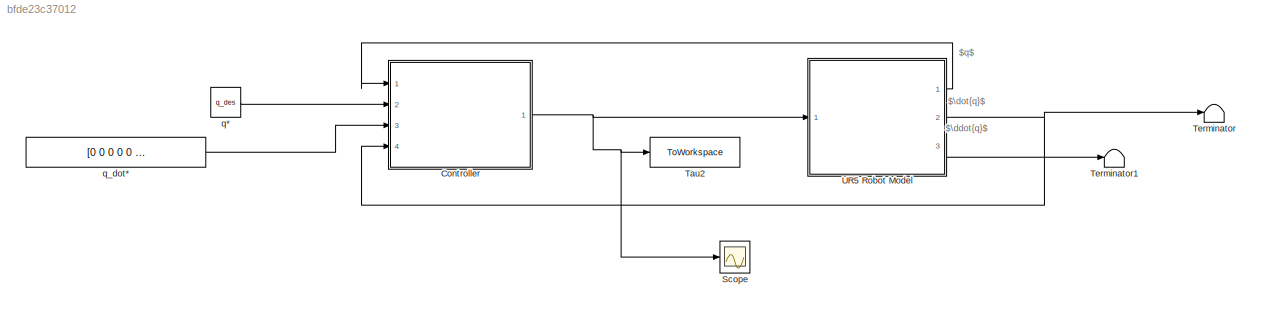
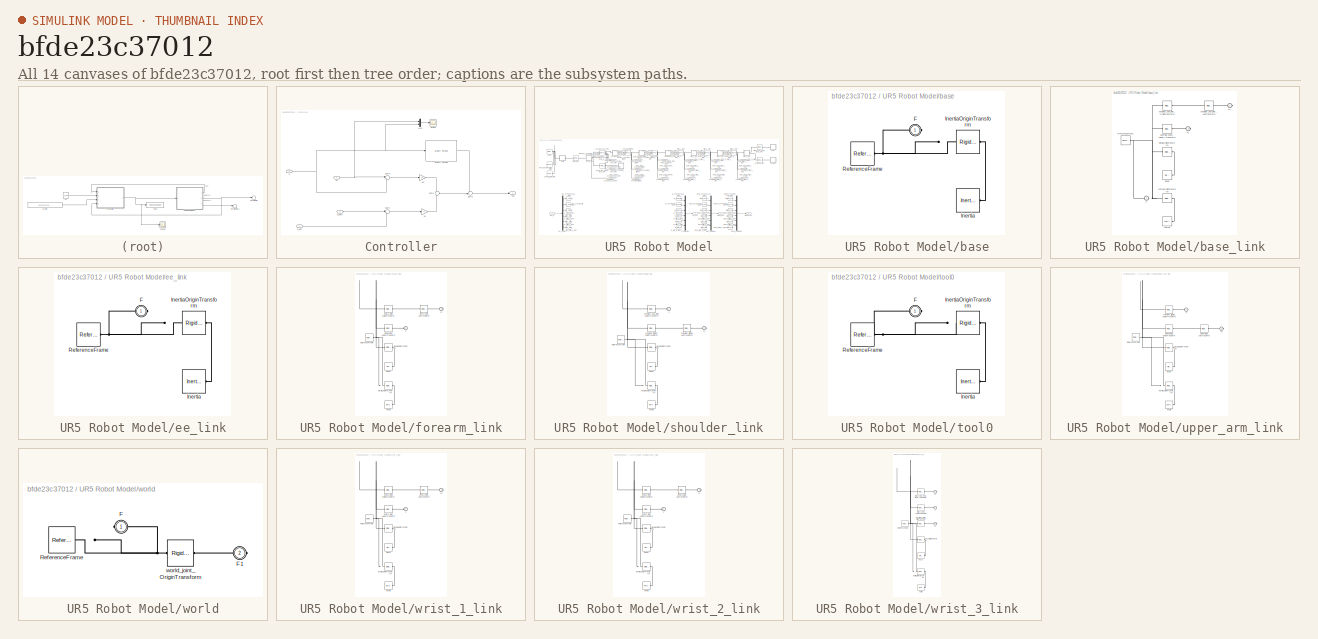
[diagram: thumbnail index - all 14 canvases of the model, root first then tree order]
MODEL slx_bfde23c37012
KIND model
CONFIG AbsTol = auto
CONFIG EnableMultiTasking = off
CONFIG FixedStep = auto
CONFIG MaxStep = auto
CONFIG MinStep = auto
CONFIG RelTol = 1e-3
CONFIG SampleTimeConstraint = Unconstrained
CONFIG SolverName = VariableStepAuto
CONFIG StartTime = 0.0
CONFIG StopTime = 10.0
WORKSPACE source: mxarray member
WORKSPACE Ke: Simulink.Parameter (value not decoded)
WORKSPACE Kv: Simulink.Parameter (value not decoded)
WORKSPACE UR5: robotics.RigidBodyTree (value not decoded)
WORKSPACE dq0 = [0 0 0 0 0 0]
WORKSPACE q0 = [0 0 0 0 0 0]
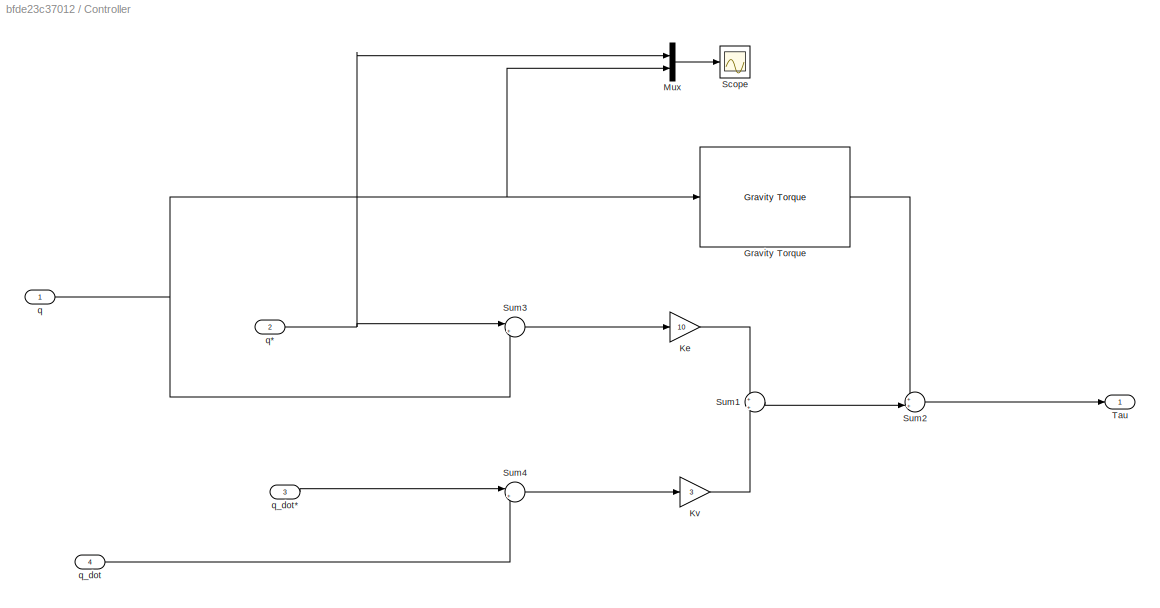
BLOCK [SubSystem] Controller
  Ports = [4, 1]
  RequestExecContextInheritance = off
BLOCK [Reference] Controller/Gravity Torque  REF=robotmaniplib/Gravity Torque
  Ports = [1, 1]
  SourceBlock = robotmaniplib/Gravity Torque
  SourceProductBaseCode = RO
  SourceType = Gravity Torque
BLOCK [Gain] Controller/Ke
  Gain = 10
BLOCK [Gain] Controller/Kv
  Gain = 3
BLOCK [Mux] Controller/Mux
  DisplayOption = bar
  Inputs = 2
  Ports = [2, 1]
BLOCK [Scope] Controller/Scope
  Floating = off
  NumInputPorts = 1
  Ports = [1]
  ScopeSpecificationString = Simulink.scopes.TimeScopeBlockCfg('CurrentConfiguration', extmgr.ConfigurationSet(extmgr.Configuration('Core','General UI',true,'FigureColor',[1 1 1]),extmgr.Configuration('Core','Source UI',true),extmgr.Configuration('Sources','WiredSimulink',true,'DataLoggingVariableName','ScopeData1'),extmgr.Configuration('Visuals','Time Domain',true,'SerializedDisplays',{struct('MinYLimReal','-2.8154','MaxYLim...<+3096ch>
BLOCK [Sum] Controller/Sum1
  Inputs = +|+
  Ports = [2, 1]
BLOCK [Sum] Controller/Sum2
  Inputs = ++|
  Ports = [2, 1]
BLOCK [Sum] Controller/Sum3
  Inputs = |+-
  Ports = [2, 1]
BLOCK [Sum] Controller/Sum4
  Inputs = |+-
  Ports = [2, 1]
BLOCK [Outport] Controller/Tau
BLOCK [Inport] Controller/q
BLOCK [Inport] Controller/q*
  Port = 2
BLOCK [Inport] Controller/q_dot
  Port = 4
BLOCK [Inport] Controller/q_dot*
  Port = 3
BLOCK [Scope] Scope
  Floating = off
  NumInputPorts = 1
  Ports = [1]
  ScopeSpecificationString = Simulink.scopes.TimeScopeBlockCfg('CurrentConfiguration', extmgr.ConfigurationSet(extmgr.Configuration('Core','General UI',true,'FigureColor',[1 1 1]),extmgr.Configuration('Core','Source UI',true),extmgr.Configuration('Sources','WiredSimulink',true,'DataLoggingVariableName','ScopeData1'),extmgr.Configuration('Visuals','Time Domain',true,'SerializedDisplays',{struct('MinYLimReal','-18.86069','MaxYL...<+2251ch>
BLOCK [ToWorkspace] Tau2
  FixptAsFi = on
  MaxDataPoints = inf
  Ports = [1]
  SampleTime = -1
  SaveFormat = Timeseries
  VariableName = Tau2
BLOCK [Terminator] Terminator
BLOCK [Terminator] Terminator1
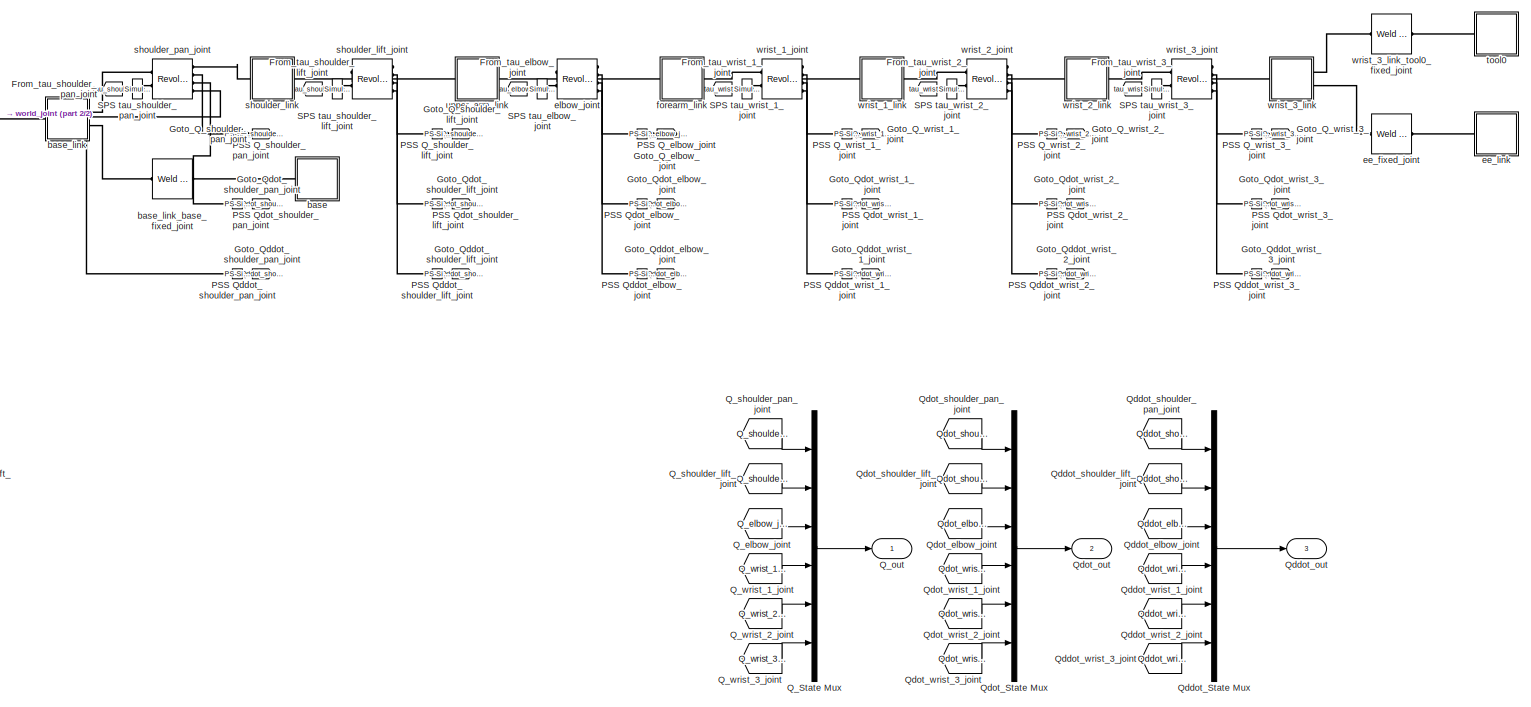
[diagram: UR5 Robot Model - part 1/2, most of the canvas]
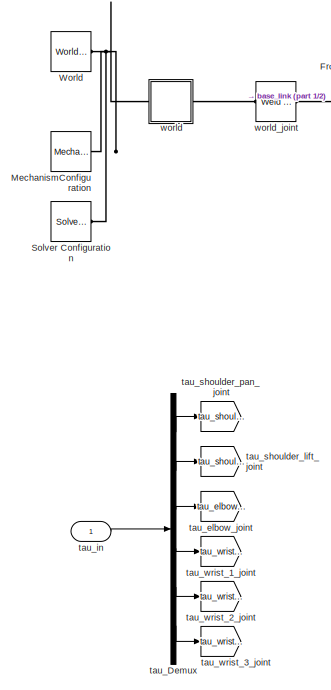
[diagram: UR5 Robot Model - part 2/2, left side, full height]
BLOCK [SubSystem] UR5 Robot Model
  Ports = [1, 3]
  RequestExecContextInheritance = off
BLOCK [From] UR5 Robot Model/From_tau_elbow_joint
  GotoTag = tau_elbow_joint
BLOCK [From] UR5 Robot Model/From_tau_shoulder_lift_joint
  GotoTag = tau_shoulder_lift_joint
BLOCK [From] UR5 Robot Model/From_tau_shoulder_pan_joint
  GotoTag = tau_shoulder_pan_joint
BLOCK [From] UR5 Robot Model/From_tau_wrist_1_joint
  GotoTag = tau_wrist_1_joint
BLOCK [From] UR5 Robot Model/From_tau_wrist_2_joint
  GotoTag = tau_wrist_2_joint
BLOCK [From] UR5 Robot Model/From_tau_wrist_3_joint
  GotoTag = tau_wrist_3_joint
BLOCK [Goto] UR5 Robot Model/Goto_Q_elbow_joint
  GotoTag = Q_elbow_joint
BLOCK [Goto] UR5 Robot Model/Goto_Q_shoulder_lift_joint
  GotoTag = Q_shoulder_lift_joint
BLOCK [Goto] UR5 Robot Model/Goto_Q_shoulder_pan_joint
  GotoTag = Q_shoulder_pan_joint
BLOCK [Goto] UR5 Robot Model/Goto_Q_wrist_1_joint
  GotoTag = Q_wrist_1_joint
BLOCK [Goto] UR5 Robot Model/Goto_Q_wrist_2_joint
  GotoTag = Q_wrist_2_joint
BLOCK [Goto] UR5 Robot Model/Goto_Q_wrist_3_joint
  GotoTag = Q_wrist_3_joint
BLOCK [Goto] UR5 Robot Model/Goto_Qddot_elbow_joint
  GotoTag = Qddot_elbow_joint
BLOCK [Goto] UR5 Robot Model/Goto_Qddot_shoulder_lift_joint
  GotoTag = Qddot_shoulder_lift_joint
BLOCK [Goto] UR5 Robot Model/Goto_Qddot_shoulder_pan_joint
  GotoTag = Qddot_shoulder_pan_joint
BLOCK [Goto] UR5 Robot Model/Goto_Qddot_wrist_1_joint
  GotoTag = Qddot_wrist_1_joint
BLOCK [Goto] UR5 Robot Model/Goto_Qddot_wrist_2_joint
  GotoTag = Qddot_wrist_2_joint
BLOCK [Goto] UR5 Robot Model/Goto_Qddot_wrist_3_joint
  GotoTag = Qddot_wrist_3_joint
BLOCK [Goto] UR5 Robot Model/Goto_Qdot_elbow_joint
  GotoTag = Qdot_elbow_joint
BLOCK [Goto] UR5 Robot Model/Goto_Qdot_shoulder_lift_joint
  GotoTag = Qdot_shoulder_lift_joint
BLOCK [Goto] UR5 Robot Model/Goto_Qdot_shoulder_pan_joint
  GotoTag = Qdot_shoulder_pan_joint
BLOCK [Goto] UR5 Robot Model/Goto_Qdot_wrist_1_joint
  GotoTag = Qdot_wrist_1_joint
BLOCK [Goto] UR5 Robot Model/Goto_Qdot_wrist_2_joint
  GotoTag = Qdot_wrist_2_joint
BLOCK [Goto] UR5 Robot Model/Goto_Qdot_wrist_3_joint
  GotoTag = Qdot_wrist_3_joint
BLOCK [Reference] UR5 Robot Model/MechanismConfiguration  REF=sm_lib/Utilities/Mechanism
Configuration
  Ports = [0, 0, 0, 0, 0, 0, 1]
  SourceBlock = sm_lib/Utilities/Mechanism\nConfiguration
  SourceProductBaseCode = MS
  SourceType = Mechanism\nConfiguration
BLOCK [Reference] UR5 Robot Model/PSS Q_elbow_joint  REF=nesl_utility/PS-Simulink
Converter
  Ports = [0, 1, 0, 0, 0, 1]
  SourceBlock = nesl_utility/PS-Simulink\nConverter
  SourceProductBaseCode = SS,PW,VE
  SourceType = PS-Simulink\nConverter
BLOCK [Reference] UR5 Robot Model/PSS Q_shoulder_lift_joint  REF=nesl_utility/PS-Simulink
Converter
  Ports = [0, 1, 0, 0, 0, 1]
  SourceBlock = nesl_utility/PS-Simulink\nConverter
  SourceProductBaseCode = SS,PW,VE
  SourceType = PS-Simulink\nConverter
BLOCK [Reference] UR5 Robot Model/PSS Q_shoulder_pan_joint  REF=nesl_utility/PS-Simulink
Converter
  Ports = [0, 1, 0, 0, 0, 1]
  SourceBlock = nesl_utility/PS-Simulink\nConverter
  SourceProductBaseCode = SS,PW,VE
  SourceType = PS-Simulink\nConverter
BLOCK [Reference] UR5 Robot Model/PSS Q_wrist_1_joint  REF=nesl_utility/PS-Simulink
Converter
  Ports = [0, 1, 0, 0, 0, 1]
  SourceBlock = nesl_utility/PS-Simulink\nConverter
  SourceProductBaseCode = SS,PW,VE
  SourceType = PS-Simulink\nConverter
BLOCK [Reference] UR5 Robot Model/PSS Q_wrist_2_joint  REF=nesl_utility/PS-Simulink
Converter
  Ports = [0, 1, 0, 0, 0, 1]
  SourceBlock = nesl_utility/PS-Simulink\nConverter
  SourceProductBaseCode = SS,PW,VE
  SourceType = PS-Simulink\nConverter
BLOCK [Reference] UR5 Robot Model/PSS Q_wrist_3_joint  REF=nesl_utility/PS-Simulink
Converter
  Ports = [0, 1, 0, 0, 0, 1]
  SourceBlock = nesl_utility/PS-Simulink\nConverter
  SourceProductBaseCode = SS,PW,VE
  SourceType = PS-Simulink\nConverter
BLOCK [Reference] UR5 Robot Model/PSS Qddot_elbow_joint  REF=nesl_utility/PS-Simulink
Converter
  Ports = [0, 1, 0, 0, 0, 1]
  SourceBlock = nesl_utility/PS-Simulink\nConverter
  SourceProductBaseCode = SS,PW,VE
  SourceType = PS-Simulink\nConverter
BLOCK [Reference] UR5 Robot Model/PSS Qddot_shoulder_lift_joint  REF=nesl_utility/PS-Simulink
Converter
  Ports = [0, 1, 0, 0, 0, 1]
  SourceBlock = nesl_utility/PS-Simulink\nConverter
  SourceProductBaseCode = SS,PW,VE
  SourceType = PS-Simulink\nConverter
BLOCK [Reference] UR5 Robot Model/PSS Qddot_shoulder_pan_joint  REF=nesl_utility/PS-Simulink
Converter
  Ports = [0, 1, 0, 0, 0, 1]
  SourceBlock = nesl_utility/PS-Simulink\nConverter
  SourceProductBaseCode = SS,PW,VE
  SourceType = PS-Simulink\nConverter
BLOCK [Reference] UR5 Robot Model/PSS Qddot_wrist_1_joint  REF=nesl_utility/PS-Simulink
Converter
  Ports = [0, 1, 0, 0, 0, 1]
  SourceBlock = nesl_utility/PS-Simulink\nConverter
  SourceProductBaseCode = SS,PW,VE
  SourceType = PS-Simulink\nConverter
BLOCK [Reference] UR5 Robot Model/PSS Qddot_wrist_2_joint  REF=nesl_utility/PS-Simulink
Converter
  Ports = [0, 1, 0, 0, 0, 1]
  SourceBlock = nesl_utility/PS-Simulink\nConverter
  SourceProductBaseCode = SS,PW,VE
  SourceType = PS-Simulink\nConverter
BLOCK [Reference] UR5 Robot Model/PSS Qddot_wrist_3_joint  REF=nesl_utility/PS-Simulink
Converter
  Ports = [0, 1, 0, 0, 0, 1]
  SourceBlock = nesl_utility/PS-Simulink\nConverter
  SourceProductBaseCode = SS,PW,VE
  SourceType = PS-Simulink\nConverter
BLOCK [Reference] UR5 Robot Model/PSS Qdot_elbow_joint  REF=nesl_utility/PS-Simulink
Converter
  Ports = [0, 1, 0, 0, 0, 1]
  SourceBlock = nesl_utility/PS-Simulink\nConverter
  SourceProductBaseCode = SS,PW,VE
  SourceType = PS-Simulink\nConverter
BLOCK [Reference] UR5 Robot Model/PSS Qdot_shoulder_lift_joint  REF=nesl_utility/PS-Simulink
Converter
  Ports = [0, 1, 0, 0, 0, 1]
  SourceBlock = nesl_utility/PS-Simulink\nConverter
  SourceProductBaseCode = SS,PW,VE
  SourceType = PS-Simulink\nConverter
BLOCK [Reference] UR5 Robot Model/PSS Qdot_shoulder_pan_joint  REF=nesl_utility/PS-Simulink
Converter
  Ports = [0, 1, 0, 0, 0, 1]
  SourceBlock = nesl_utility/PS-Simulink\nConverter
  SourceProductBaseCode = SS,PW,VE
  SourceType = PS-Simulink\nConverter
BLOCK [Reference] UR5 Robot Model/PSS Qdot_wrist_1_joint  REF=nesl_utility/PS-Simulink
Converter
  Ports = [0, 1, 0, 0, 0, 1]
  SourceBlock = nesl_utility/PS-Simulink\nConverter
  SourceProductBaseCode = SS,PW,VE
  SourceType = PS-Simulink\nConverter
BLOCK [Reference] UR5 Robot Model/PSS Qdot_wrist_2_joint  REF=nesl_utility/PS-Simulink
Converter
  Ports = [0, 1, 0, 0, 0, 1]
  SourceBlock = nesl_utility/PS-Simulink\nConverter
  SourceProductBaseCode = SS,PW,VE
  SourceType = PS-Simulink\nConverter
BLOCK [Reference] UR5 Robot Model/PSS Qdot_wrist_3_joint  REF=nesl_utility/PS-Simulink
Converter
  Ports = [0, 1, 0, 0, 0, 1]
  SourceBlock = nesl_utility/PS-Simulink\nConverter
  SourceProductBaseCode = SS,PW,VE
  SourceType = PS-Simulink\nConverter
BLOCK [Mux] UR5 Robot Model/Q_State Mux
  DisplayOption = bar
  Inputs = 6
  Ports = [6, 1]
BLOCK [From] UR5 Robot Model/Q_elbow_joint
  GotoTag = Q_elbow_joint
BLOCK [Outport] UR5 Robot Model/Q_out
BLOCK [From] UR5 Robot Model/Q_shoulder_lift_joint
  GotoTag = Q_shoulder_lift_joint
BLOCK [From] UR5 Robot Model/Q_shoulder_pan_joint
  GotoTag = Q_shoulder_pan_joint
BLOCK [From] UR5 Robot Model/Q_wrist_1_joint
  GotoTag = Q_wrist_1_joint
BLOCK [From] UR5 Robot Model/Q_wrist_2_joint
  GotoTag = Q_wrist_2_joint
BLOCK [From] UR5 Robot Model/Q_wrist_3_joint
  GotoTag = Q_wrist_3_joint
BLOCK [Mux] UR5 Robot Model/Qddot_State Mux
  DisplayOption = bar
  Inputs = 6
  Ports = [6, 1]
BLOCK [From] UR5 Robot Model/Qddot_elbow_joint
  GotoTag = Qddot_elbow_joint
BLOCK [Outport] UR5 Robot Model/Qddot_out
  Port = 3
BLOCK [From] UR5 Robot Model/Qddot_shoulder_lift_joint
  GotoTag = Qddot_shoulder_lift_joint
BLOCK [From] UR5 Robot Model/Qddot_shoulder_pan_joint
  GotoTag = Qddot_shoulder_pan_joint
BLOCK [From] UR5 Robot Model/Qddot_wrist_1_joint
  GotoTag = Qddot_wrist_1_joint
BLOCK [From] UR5 Robot Model/Qddot_wrist_2_joint
  GotoTag = Qddot_wrist_2_joint
BLOCK [From] UR5 Robot Model/Qddot_wrist_3_joint
  GotoTag = Qddot_wrist_3_joint
BLOCK [Mux] UR5 Robot Model/Qdot_State Mux
  DisplayOption = bar
  Inputs = 6
  Ports = [6, 1]
BLOCK [From] UR5 Robot Model/Qdot_elbow_joint
  GotoTag = Qdot_elbow_joint
BLOCK [Outport] UR5 Robot Model/Qdot_out
  Port = 2
BLOCK [From] UR5 Robot Model/Qdot_shoulder_lift_joint
  GotoTag = Qdot_shoulder_lift_joint
BLOCK [From] UR5 Robot Model/Qdot_shoulder_pan_joint
  GotoTag = Qdot_shoulder_pan_joint
BLOCK [From] UR5 Robot Model/Qdot_wrist_1_joint
  GotoTag = Qdot_wrist_1_joint
BLOCK [From] UR5 Robot Model/Qdot_wrist_2_joint
  GotoTag = Qdot_wrist_2_joint
BLOCK [From] UR5 Robot Model/Qdot_wrist_3_joint
  GotoTag = Qdot_wrist_3_joint
BLOCK [Reference] UR5 Robot Model/SPS tau_elbow_joint  REF=nesl_utility/Simulink-PS
Converter
  Ports = [1, 0, 0, 0, 0, 0, 1]
  SourceBlock = nesl_utility/Simulink-PS\nConverter
  SourceProductBaseCode = SS,PW,VE
  SourceType = Simulink-PS\nConverter
BLOCK [Reference] UR5 Robot Model/SPS tau_shoulder_lift_joint  REF=nesl_utility/Simulink-PS
Converter
  Ports = [1, 0, 0, 0, 0, 0, 1]
  SourceBlock = nesl_utility/Simulink-PS\nConverter
  SourceProductBaseCode = SS,PW,VE
  SourceType = Simulink-PS\nConverter
BLOCK [Reference] UR5 Robot Model/SPS tau_shoulder_pan_joint  REF=nesl_utility/Simulink-PS
Converter
  Ports = [1, 0, 0, 0, 0, 0, 1]
  SourceBlock = nesl_utility/Simulink-PS\nConverter
  SourceProductBaseCode = SS,PW,VE
  SourceType = Simulink-PS\nConverter
BLOCK [Reference] UR5 Robot Model/SPS tau_wrist_1_joint  REF=nesl_utility/Simulink-PS
Converter
  Ports = [1, 0, 0, 0, 0, 0, 1]
  SourceBlock = nesl_utility/Simulink-PS\nConverter
  SourceProductBaseCode = SS,PW,VE
  SourceType = Simulink-PS\nConverter
BLOCK [Reference] UR5 Robot Model/SPS tau_wrist_2_joint  REF=nesl_utility/Simulink-PS
Converter
  Ports = [1, 0, 0, 0, 0, 0, 1]
  SourceBlock = nesl_utility/Simulink-PS\nConverter
  SourceProductBaseCode = SS,PW,VE
  SourceType = Simulink-PS\nConverter
BLOCK [Reference] UR5 Robot Model/SPS tau_wrist_3_joint  REF=nesl_utility/Simulink-PS
Converter
  Ports = [1, 0, 0, 0, 0, 0, 1]
  SourceBlock = nesl_utility/Simulink-PS\nConverter
  SourceProductBaseCode = SS,PW,VE
  SourceType = Simulink-PS\nConverter
BLOCK [Reference] UR5 Robot Model/Solver Configuration  REF=nesl_utility/Solver
Configuration
  Ports = [0, 0, 0, 0, 0, 0, 1]
  SourceBlock = nesl_utility/Solver\nConfiguration
  SourceProductBaseCode = SS,PW,VE
  SourceType = Solver\nConfiguration
BLOCK [Reference] UR5 Robot Model/World  REF=sm_lib/Frames and
Transforms/World Frame
  Ports = [0, 0, 0, 0, 0, 0, 1]
  SourceBlock = sm_lib/Frames and\nTransforms/World Frame
  SourceProductBaseCode = MS
  SourceType = World Frame
BLOCK [SubSystem] UR5 Robot Model/base
  Ports = [0, 0, 0, 0, 0, 1]
  RequestExecContextInheritance = off
BLOCK [PMIOPort] UR5 Robot Model/base/F
  Side = Left
BLOCK [Reference] UR5 Robot Model/base/Inertia  REF=sm_lib/Body Elements/Inertia
  Ports = [0, 0, 0, 0, 0, 0, 1]
  SourceBlock = sm_lib/Body Elements/Inertia
  SourceProductBaseCode = MS
  SourceType = Inertia
BLOCK [Reference] UR5 Robot Model/base/InertiaOriginTransform  REF=sm_lib/Frames and
Transforms/Rigid
Transform
  Ports = [0, 0, 0, 0, 0, 1, 1]
  SourceBlock = sm_lib/Frames and\nTransforms/Rigid\nTransform
  SourceProductBaseCode = MS
  SourceType = Rigid\nTransform
BLOCK [Reference] UR5 Robot Model/base/ReferenceFrame  REF=sm_lib/Frames and
Transforms/Reference
Frame
  Ports = [0, 0, 0, 0, 0, 0, 1]
  SourceBlock = sm_lib/Frames and\nTransforms/Reference\nFrame
  SourceProductBaseCode = MS
  SourceType = Reference\nFrame
BLOCK [SubSystem] UR5 Robot Model/base_link
  Ports = [0, 0, 0, 0, 0, 1, 2]
  RequestExecContextInheritance = off
BLOCK [PMIOPort] UR5 Robot Model/base_link/F
  Side = Left
BLOCK [PMIOPort] UR5 Robot Model/base_link/F1
  Port = 3
  Side = Right
BLOCK [PMIOPort] UR5 Robot Model/base_link/F2
  Port = 2
  Side = Right
BLOCK [Reference] UR5 Robot Model/base_link/Inertia  REF=sm_lib/Body Elements/Inertia
  Ports = [0, 0, 0, 0, 0, 0, 1]
  SourceBlock = sm_lib/Body Elements/Inertia
  SourceProductBaseCode = MS
  SourceType = Inertia
BLOCK [Reference] UR5 Robot Model/base_link/InertiaOriginTransform  REF=sm_lib/Frames and
Transforms/Rigid
Transform
  Ports = [0, 0, 0, 0, 0, 1, 1]
  SourceBlock = sm_lib/Frames and\nTransforms/Rigid\nTransform
  SourceProductBaseCode = MS
  SourceType = Rigid\nTransform
BLOCK [Reference] UR5 Robot Model/base_link/ReferenceFrame  REF=sm_lib/Frames and
Transforms/Reference
Frame
  Ports = [0, 0, 0, 0, 0, 0, 1]
  SourceBlock = sm_lib/Frames and\nTransforms/Reference\nFrame
  SourceProductBaseCode = MS
  SourceType = Reference\nFrame
BLOCK [Reference] UR5 Robot Model/base_link/Visual  REF=sm_lib/Body Elements/File Solid
  Ports = [0, 0, 0, 0, 0, 0, 1]
  SourceBlock = sm_lib/Body Elements/File Solid
  SourceProductBaseCode = MS
  SourceType = File Solid
BLOCK [Reference] UR5 Robot Model/base_link/VisualOriginTransform  REF=sm_lib/Frames and
Transforms/Rigid
Transform
  Ports = [0, 0, 0, 0, 0, 1, 1]
  SourceBlock = sm_lib/Frames and\nTransforms/Rigid\nTransform
  SourceProductBaseCode = MS
  SourceType = Rigid\nTransform
BLOCK [Reference] UR5 Robot Model/base_link/base_link_base_fixed_joint_OriginTransform  REF=sm_lib/Frames and
Transforms/Rigid
Transform
  Ports = [0, 0, 0, 0, 0, 1, 1]
  SourceBlock = sm_lib/Frames and\nTransforms/Rigid\nTransform
  SourceProductBaseCode = MS
  SourceType = Rigid\nTransform
BLOCK [Reference] UR5 Robot Model/base_link/shoulder_pan_joint_AxisTransform  REF=sm_lib/Frames and
Transforms/Rigid
Transform
  Ports = [0, 0, 0, 0, 0, 1, 1]
  SourceBlock = sm_lib/Frames and\nTransforms/Rigid\nTransform
  SourceProductBaseCode = MS
  SourceType = Rigid\nTransform
BLOCK [Reference] UR5 Robot Model/base_link/shoulder_pan_joint_OriginTransform  REF=sm_lib/Frames and
Transforms/Rigid
Transform
  Ports = [0, 0, 0, 0, 0, 1, 1]
  SourceBlock = sm_lib/Frames and\nTransforms/Rigid\nTransform
  SourceProductBaseCode = MS
  SourceType = Rigid\nTransform
BLOCK [Reference] UR5 Robot Model/base_link_base_fixed_joint  REF=sm_lib/Joints/Weld Joint
  Ports = [0, 0, 0, 0, 0, 1, 1]
  SourceBlock = sm_lib/Joints/Weld Joint
  SourceProductBaseCode = MS
  SourceType = Weld Joint
BLOCK [Reference] UR5 Robot Model/ee_fixed_joint  REF=sm_lib/Joints/Weld Joint
  Ports = [0, 0, 0, 0, 0, 1, 1]
  SourceBlock = sm_lib/Joints/Weld Joint
  SourceProductBaseCode = MS
  SourceType = Weld Joint
BLOCK [SubSystem] UR5 Robot Model/ee_link
  Ports = [0, 0, 0, 0, 0, 1]
  RequestExecContextInheritance = off
BLOCK [PMIOPort] UR5 Robot Model/ee_link/F
  Side = Left
BLOCK [Reference] UR5 Robot Model/ee_link/Inertia  REF=sm_lib/Body Elements/Inertia
  Ports = [0, 0, 0, 0, 0, 0, 1]
  SourceBlock = sm_lib/Body Elements/Inertia
  SourceProductBaseCode = MS
  SourceType = Inertia
BLOCK [Reference] UR5 Robot Model/ee_link/InertiaOriginTransform  REF=sm_lib/Frames and
Transforms/Rigid
Transform
  Ports = [0, 0, 0, 0, 0, 1, 1]
  SourceBlock = sm_lib/Frames and\nTransforms/Rigid\nTransform
  SourceProductBaseCode = MS
  SourceType = Rigid\nTransform
BLOCK [Reference] UR5 Robot Model/ee_link/ReferenceFrame  REF=sm_lib/Frames and
Transforms/Reference
Frame
  Ports = [0, 0, 0, 0, 0, 0, 1]
  SourceBlock = sm_lib/Frames and\nTransforms/Reference\nFrame
  SourceProductBaseCode = MS
  SourceType = Reference\nFrame
BLOCK [Reference] UR5 Robot Model/elbow_joint  REF=sm_lib/Joints/Revolute Joint
  Ports = [0, 0, 0, 0, 0, 2, 4]
  SourceBlock = sm_lib/Joints/Revolute Joint
  SourceProductBaseCode = MS
  SourceType = Revolute Joint
BLOCK [SubSystem] UR5 Robot Model/forearm_link
  Ports = [0, 0, 0, 0, 0, 1, 1]
  RequestExecContextInheritance = off
BLOCK [PMIOPort] UR5 Robot Model/forearm_link/F
  Side = Left
BLOCK [PMIOPort] UR5 Robot Model/forearm_link/F1
  Port = 2
  Side = Right
BLOCK [Reference] UR5 Robot Model/forearm_link/Inertia  REF=sm_lib/Body Elements/Inertia
  Ports = [0, 0, 0, 0, 0, 0, 1]
  SourceBlock = sm_lib/Body Elements/Inertia
  SourceProductBaseCode = MS
  SourceType = Inertia
BLOCK [Reference] UR5 Robot Model/forearm_link/InertiaOriginTransform  REF=sm_lib/Frames and
Transforms/Rigid
Transform
  Ports = [0, 0, 0, 0, 0, 1, 1]
  SourceBlock = sm_lib/Frames and\nTransforms/Rigid\nTransform
  SourceProductBaseCode = MS
  SourceType = Rigid\nTransform
BLOCK [Reference] UR5 Robot Model/forearm_link/ReferenceFrame  REF=sm_lib/Frames and
Transforms/Reference
Frame
  Ports = [0, 0, 0, 0, 0, 0, 1]
  SourceBlock = sm_lib/Frames and\nTransforms/Reference\nFrame
  SourceProductBaseCode = MS
  SourceType = Reference\nFrame
BLOCK [Reference] UR5 Robot Model/forearm_link/Visual  REF=sm_lib/Body Elements/File Solid
  Ports = [0, 0, 0, 0, 0, 0, 1]
  SourceBlock = sm_lib/Body Elements/File Solid
  SourceProductBaseCode = MS
  SourceType = File Solid
BLOCK [Reference] UR5 Robot Model/forearm_link/VisualOriginTransform  REF=sm_lib/Frames and
Transforms/Rigid
Transform
  Ports = [0, 0, 0, 0, 0, 1, 1]
  SourceBlock = sm_lib/Frames and\nTransforms/Rigid\nTransform
  SourceProductBaseCode = MS
  SourceType = Rigid\nTransform
BLOCK [Reference] UR5 Robot Model/forearm_link/elbow_joint_AxisInvTransform  REF=sm_lib/Frames and
Transforms/Rigid
Transform
  Ports = [0, 0, 0, 0, 0, 1, 1]
  SourceBlock = sm_lib/Frames and\nTransforms/Rigid\nTransform
  SourceProductBaseCode = MS
  SourceType = Rigid\nTransform
BLOCK [Reference] UR5 Robot Model/forearm_link/wrist_1_joint_AxisTransform  REF=sm_lib/Frames and
Transforms/Rigid
Transform
  Ports = [0, 0, 0, 0, 0, 1, 1]
  SourceBlock = sm_lib/Frames and\nTransforms/Rigid\nTransform
  SourceProductBaseCode = MS
  SourceType = Rigid\nTransform
BLOCK [Reference] UR5 Robot Model/forearm_link/wrist_1_joint_OriginTransform  REF=sm_lib/Frames and
Transforms/Rigid
Transform
  Ports = [0, 0, 0, 0, 0, 1, 1]
  SourceBlock = sm_lib/Frames and\nTransforms/Rigid\nTransform
  SourceProductBaseCode = MS
  SourceType = Rigid\nTransform
BLOCK [Reference] UR5 Robot Model/shoulder_lift_joint  REF=sm_lib/Joints/Revolute Joint
  Ports = [0, 0, 0, 0, 0, 2, 4]
  SourceBlock = sm_lib/Joints/Revolute Joint
  SourceProductBaseCode = MS
  SourceType = Revolute Joint
BLOCK [SubSystem] UR5 Robot Model/shoulder_link
  Ports = [0, 0, 0, 0, 0, 1, 1]
  RequestExecContextInheritance = off
BLOCK [PMIOPort] UR5 Robot Model/shoulder_link/F
  Side = Left
BLOCK [PMIOPort] UR5 Robot Model/shoulder_link/F1
  Port = 2
  Side = Right
BLOCK [Reference] UR5 Robot Model/shoulder_link/Inertia  REF=sm_lib/Body Elements/Inertia
  Ports = [0, 0, 0, 0, 0, 0, 1]
  SourceBlock = sm_lib/Body Elements/Inertia
  SourceProductBaseCode = MS
  SourceType = Inertia
BLOCK [Reference] UR5 Robot Model/shoulder_link/InertiaOriginTransform  REF=sm_lib/Frames and
Transforms/Rigid
Transform
  Ports = [0, 0, 0, 0, 0, 1, 1]
  SourceBlock = sm_lib/Frames and\nTransforms/Rigid\nTransform
  SourceProductBaseCode = MS
  SourceType = Rigid\nTransform
BLOCK [Reference] UR5 Robot Model/shoulder_link/ReferenceFrame  REF=sm_lib/Frames and
Transforms/Reference
Frame
  Ports = [0, 0, 0, 0, 0, 0, 1]
  SourceBlock = sm_lib/Frames and\nTransforms/Reference\nFrame
  SourceProductBaseCode = MS
  SourceType = Reference\nFrame
BLOCK [Reference] UR5 Robot Model/shoulder_link/Visual  REF=sm_lib/Body Elements/File Solid
  Ports = [0, 0, 0, 0, 0, 0, 1]
  SourceBlock = sm_lib/Body Elements/File Solid
  SourceProductBaseCode = MS
  SourceType = File Solid
BLOCK [Reference] UR5 Robot Model/shoulder_link/VisualOriginTransform  REF=sm_lib/Frames and
Transforms/Rigid
Transform
  Ports = [0, 0, 0, 0, 0, 1, 1]
  SourceBlock = sm_lib/Frames and\nTransforms/Rigid\nTransform
  SourceProductBaseCode = MS
  SourceType = Rigid\nTransform
BLOCK [Reference] UR5 Robot Model/shoulder_link/shoulder_lift_joint_AxisTransform  REF=sm_lib/Frames and
Transforms/Rigid
Transform
  Ports = [0, 0, 0, 0, 0, 1, 1]
  SourceBlock = sm_lib/Frames and\nTransforms/Rigid\nTransform
  SourceProductBaseCode = MS
  SourceType = Rigid\nTransform
BLOCK [Reference] UR5 Robot Model/shoulder_link/shoulder_lift_joint_OriginTransform  REF=sm_lib/Frames and
Transforms/Rigid
Transform
  Ports = [0, 0, 0, 0, 0, 1, 1]
  SourceBlock = sm_lib/Frames and\nTransforms/Rigid\nTransform
  SourceProductBaseCode = MS
  SourceType = Rigid\nTransform
BLOCK [Reference] UR5 Robot Model/shoulder_link/shoulder_pan_joint_AxisInvTransform  REF=sm_lib/Frames and
Transforms/Rigid
Transform
  Ports = [0, 0, 0, 0, 0, 1, 1]
  SourceBlock = sm_lib/Frames and\nTransforms/Rigid\nTransform
  SourceProductBaseCode = MS
  SourceType = Rigid\nTransform
BLOCK [Reference] UR5 Robot Model/shoulder_pan_joint  REF=sm_lib/Joints/Revolute Joint
  Ports = [0, 0, 0, 0, 0, 2, 4]
  SourceBlock = sm_lib/Joints/Revolute Joint
  SourceProductBaseCode = MS
  SourceType = Revolute Joint
BLOCK [Demux] UR5 Robot Model/tau_Demux
  Outputs = 6
  Ports = [1, 6]
BLOCK [Goto] UR5 Robot Model/tau_elbow_joint
  GotoTag = tau_elbow_joint
BLOCK [Inport] UR5 Robot Model/tau_in
BLOCK [Goto] UR5 Robot Model/tau_shoulder_lift_joint
  GotoTag = tau_shoulder_lift_joint
BLOCK [Goto] UR5 Robot Model/tau_shoulder_pan_joint
  GotoTag = tau_shoulder_pan_joint
BLOCK [Goto] UR5 Robot Model/tau_wrist_1_joint
  GotoTag = tau_wrist_1_joint
BLOCK [Goto] UR5 Robot Model/tau_wrist_2_joint
  GotoTag = tau_wrist_2_joint
BLOCK [Goto] UR5 Robot Model/tau_wrist_3_joint
  GotoTag = tau_wrist_3_joint
BLOCK [SubSystem] UR5 Robot Model/tool0
  Ports = [0, 0, 0, 0, 0, 1]
  RequestExecContextInheritance = off
BLOCK [PMIOPort] UR5 Robot Model/tool0/F
  Side = Left
BLOCK [Reference] UR5 Robot Model/tool0/Inertia  REF=sm_lib/Body Elements/Inertia
  Ports = [0, 0, 0, 0, 0, 0, 1]
  SourceBlock = sm_lib/Body Elements/Inertia
  SourceProductBaseCode = MS
  SourceType = Inertia
BLOCK [Reference] UR5 Robot Model/tool0/InertiaOriginTransform  REF=sm_lib/Frames and
Transforms/Rigid
Transform
  Ports = [0, 0, 0, 0, 0, 1, 1]
  SourceBlock = sm_lib/Frames and\nTransforms/Rigid\nTransform
  SourceProductBaseCode = MS
  SourceType = Rigid\nTransform
BLOCK [Reference] UR5 Robot Model/tool0/ReferenceFrame  REF=sm_lib/Frames and
Transforms/Reference
Frame
  Ports = [0, 0, 0, 0, 0, 0, 1]
  SourceBlock = sm_lib/Frames and\nTransforms/Reference\nFrame
  SourceProductBaseCode = MS
  SourceType = Reference\nFrame
BLOCK [SubSystem] UR5 Robot Model/upper_arm_link
  Ports = [0, 0, 0, 0, 0, 1, 1]
  RequestExecContextInheritance = off
BLOCK [PMIOPort] UR5 Robot Model/upper_arm_link/F
  Side = Left
BLOCK [PMIOPort] UR5 Robot Model/upper_arm_link/F1
  Port = 2
  Side = Right
BLOCK [Reference] UR5 Robot Model/upper_arm_link/Inertia  REF=sm_lib/Body Elements/Inertia
  Ports = [0, 0, 0, 0, 0, 0, 1]
  SourceBlock = sm_lib/Body Elements/Inertia
  SourceProductBaseCode = MS
  SourceType = Inertia
BLOCK [Reference] UR5 Robot Model/upper_arm_link/InertiaOriginTransform  REF=sm_lib/Frames and
Transforms/Rigid
Transform
  Ports = [0, 0, 0, 0, 0, 1, 1]
  SourceBlock = sm_lib/Frames and\nTransforms/Rigid\nTransform
  SourceProductBaseCode = MS
  SourceType = Rigid\nTransform
BLOCK [Reference] UR5 Robot Model/upper_arm_link/ReferenceFrame  REF=sm_lib/Frames and
Transforms/Reference
Frame
  Ports = [0, 0, 0, 0, 0, 0, 1]
  SourceBlock = sm_lib/Frames and\nTransforms/Reference\nFrame
  SourceProductBaseCode = MS
  SourceType = Reference\nFrame
BLOCK [Reference] UR5 Robot Model/upper_arm_link/Visual  REF=sm_lib/Body Elements/File Solid
  Ports = [0, 0, 0, 0, 0, 0, 1]
  SourceBlock = sm_lib/Body Elements/File Solid
  SourceProductBaseCode = MS
  SourceType = File Solid
BLOCK [Reference] UR5 Robot Model/upper_arm_link/VisualOriginTransform  REF=sm_lib/Frames and
Transforms/Rigid
Transform
  Ports = [0, 0, 0, 0, 0, 1, 1]
  SourceBlock = sm_lib/Frames and\nTransforms/Rigid\nTransform
  SourceProductBaseCode = MS
  SourceType = Rigid\nTransform
BLOCK [Reference] UR5 Robot Model/upper_arm_link/elbow_joint_AxisTransform  REF=sm_lib/Frames and
Transforms/Rigid
Transform
  Ports = [0, 0, 0, 0, 0, 1, 1]
  SourceBlock = sm_lib/Frames and\nTransforms/Rigid\nTransform
  SourceProductBaseCode = MS
  SourceType = Rigid\nTransform
BLOCK [Reference] UR5 Robot Model/upper_arm_link/elbow_joint_OriginTransform  REF=sm_lib/Frames and
Transforms/Rigid
Transform
  Ports = [0, 0, 0, 0, 0, 1, 1]
  SourceBlock = sm_lib/Frames and\nTransforms/Rigid\nTransform
  SourceProductBaseCode = MS
  SourceType = Rigid\nTransform
BLOCK [Reference] UR5 Robot Model/upper_arm_link/shoulder_lift_joint_AxisInvTransform  REF=sm_lib/Frames and
Transforms/Rigid
Transform
  Ports = [0, 0, 0, 0, 0, 1, 1]
  SourceBlock = sm_lib/Frames and\nTransforms/Rigid\nTransform
  SourceProductBaseCode = MS
  SourceType = Rigid\nTransform
BLOCK [SubSystem] UR5 Robot Model/world
  Ports = [0, 0, 0, 0, 0, 1, 1]
  RequestExecContextInheritance = off
BLOCK [PMIOPort] UR5 Robot Model/world/F
  Side = Left
BLOCK [PMIOPort] UR5 Robot Model/world/F1
  Port = 2
  Side = Right
BLOCK [Reference] UR5 Robot Model/world/ReferenceFrame  REF=sm_lib/Frames and
Transforms/Reference
Frame
  Ports = [0, 0, 0, 0, 0, 0, 1]
  SourceBlock = sm_lib/Frames and\nTransforms/Reference\nFrame
  SourceProductBaseCode = MS
  SourceType = Reference\nFrame
BLOCK [Reference] UR5 Robot Model/world/world_joint_OriginTransform  REF=sm_lib/Frames and
Transforms/Rigid
Transform
  Ports = [0, 0, 0, 0, 0, 1, 1]
  SourceBlock = sm_lib/Frames and\nTransforms/Rigid\nTransform
  SourceProductBaseCode = MS
  SourceType = Rigid\nTransform
BLOCK [Reference] UR5 Robot Model/world_joint  REF=sm_lib/Joints/Weld Joint
  Ports = [0, 0, 0, 0, 0, 1, 1]
  SourceBlock = sm_lib/Joints/Weld Joint
  SourceProductBaseCode = MS
  SourceType = Weld Joint
BLOCK [Reference] UR5 Robot Model/wrist_1_joint  REF=sm_lib/Joints/Revolute Joint
  Ports = [0, 0, 0, 0, 0, 2, 4]
  SourceBlock = sm_lib/Joints/Revolute Joint
  SourceProductBaseCode = MS
  SourceType = Revolute Joint
BLOCK [SubSystem] UR5 Robot Model/wrist_1_link
  Ports = [0, 0, 0, 0, 0, 1, 1]
  RequestExecContextInheritance = off
BLOCK [PMIOPort] UR5 Robot Model/wrist_1_link/F
  Side = Left
BLOCK [PMIOPort] UR5 Robot Model/wrist_1_link/F1
  Port = 2
  Side = Right
BLOCK [Reference] UR5 Robot Model/wrist_1_link/Inertia  REF=sm_lib/Body Elements/Inertia
  Ports = [0, 0, 0, 0, 0, 0, 1]
  SourceBlock = sm_lib/Body Elements/Inertia
  SourceProductBaseCode = MS
  SourceType = Inertia
BLOCK [Reference] UR5 Robot Model/wrist_1_link/InertiaOriginTransform  REF=sm_lib/Frames and
Transforms/Rigid
Transform
  Ports = [0, 0, 0, 0, 0, 1, 1]
  SourceBlock = sm_lib/Frames and\nTransforms/Rigid\nTransform
  SourceProductBaseCode = MS
  SourceType = Rigid\nTransform
BLOCK [Reference] UR5 Robot Model/wrist_1_link/ReferenceFrame  REF=sm_lib/Frames and
Transforms/Reference
Frame
  Ports = [0, 0, 0, 0, 0, 0, 1]
  SourceBlock = sm_lib/Frames and\nTransforms/Reference\nFrame
  SourceProductBaseCode = MS
  SourceType = Reference\nFrame
BLOCK [Reference] UR5 Robot Model/wrist_1_link/Visual  REF=sm_lib/Body Elements/File Solid
  Ports = [0, 0, 0, 0, 0, 0, 1]
  SourceBlock = sm_lib/Body Elements/File Solid
  SourceProductBaseCode = MS
  SourceType = File Solid
BLOCK [Reference] UR5 Robot Model/wrist_1_link/VisualOriginTransform  REF=sm_lib/Frames and
Transforms/Rigid
Transform
  Ports = [0, 0, 0, 0, 0, 1, 1]
  SourceBlock = sm_lib/Frames and\nTransforms/Rigid\nTransform
  SourceProductBaseCode = MS
  SourceType = Rigid\nTransform
BLOCK [Reference] UR5 Robot Model/wrist_1_link/wrist_1_joint_AxisInvTransform  REF=sm_lib/Frames and
Transforms/Rigid
Transform
  Ports = [0, 0, 0, 0, 0, 1, 1]
  SourceBlock = sm_lib/Frames and\nTransforms/Rigid\nTransform
  SourceProductBaseCode = MS
  SourceType = Rigid\nTransform
BLOCK [Reference] UR5 Robot Model/wrist_1_link/wrist_2_joint_AxisTransform  REF=sm_lib/Frames and
Transforms/Rigid
Transform
  Ports = [0, 0, 0, 0, 0, 1, 1]
  SourceBlock = sm_lib/Frames and\nTransforms/Rigid\nTransform
  SourceProductBaseCode = MS
  SourceType = Rigid\nTransform
BLOCK [Reference] UR5 Robot Model/wrist_1_link/wrist_2_joint_OriginTransform  REF=sm_lib/Frames and
Transforms/Rigid
Transform
  Ports = [0, 0, 0, 0, 0, 1, 1]
  SourceBlock = sm_lib/Frames and\nTransforms/Rigid\nTransform
  SourceProductBaseCode = MS
  SourceType = Rigid\nTransform
BLOCK [Reference] UR5 Robot Model/wrist_2_joint  REF=sm_lib/Joints/Revolute Joint
  Ports = [0, 0, 0, 0, 0, 2, 4]
  SourceBlock = sm_lib/Joints/Revolute Joint
  SourceProductBaseCode = MS
  SourceType = Revolute Joint
BLOCK [SubSystem] UR5 Robot Model/wrist_2_link
  Ports = [0, 0, 0, 0, 0, 1, 1]
  RequestExecContextInheritance = off
BLOCK [PMIOPort] UR5 Robot Model/wrist_2_link/F
  Side = Left
BLOCK [PMIOPort] UR5 Robot Model/wrist_2_link/F1
  Port = 2
  Side = Right
BLOCK [Reference] UR5 Robot Model/wrist_2_link/Inertia  REF=sm_lib/Body Elements/Inertia
  Ports = [0, 0, 0, 0, 0, 0, 1]
  SourceBlock = sm_lib/Body Elements/Inertia
  SourceProductBaseCode = MS
  SourceType = Inertia
BLOCK [Reference] UR5 Robot Model/wrist_2_link/InertiaOriginTransform  REF=sm_lib/Frames and
Transforms/Rigid
Transform
  Ports = [0, 0, 0, 0, 0, 1, 1]
  SourceBlock = sm_lib/Frames and\nTransforms/Rigid\nTransform
  SourceProductBaseCode = MS
  SourceType = Rigid\nTransform
BLOCK [Reference] UR5 Robot Model/wrist_2_link/ReferenceFrame  REF=sm_lib/Frames and
Transforms/Reference
Frame
  Ports = [0, 0, 0, 0, 0, 0, 1]
  SourceBlock = sm_lib/Frames and\nTransforms/Reference\nFrame
  SourceProductBaseCode = MS
  SourceType = Reference\nFrame
BLOCK [Reference] UR5 Robot Model/wrist_2_link/Visual  REF=sm_lib/Body Elements/File Solid
  Ports = [0, 0, 0, 0, 0, 0, 1]
  SourceBlock = sm_lib/Body Elements/File Solid
  SourceProductBaseCode = MS
  SourceType = File Solid
BLOCK [Reference] UR5 Robot Model/wrist_2_link/VisualOriginTransform  REF=sm_lib/Frames and
Transforms/Rigid
Transform
  Ports = [0, 0, 0, 0, 0, 1, 1]
  SourceBlock = sm_lib/Frames and\nTransforms/Rigid\nTransform
  SourceProductBaseCode = MS
  SourceType = Rigid\nTransform
BLOCK [Reference] UR5 Robot Model/wrist_2_link/wrist_2_joint_AxisInvTransform  REF=sm_lib/Frames and
Transforms/Rigid
Transform
  Ports = [0, 0, 0, 0, 0, 1, 1]
  SourceBlock = sm_lib/Frames and\nTransforms/Rigid\nTransform
  SourceProductBaseCode = MS
  SourceType = Rigid\nTransform
BLOCK [Reference] UR5 Robot Model/wrist_2_link/wrist_3_joint_AxisTransform  REF=sm_lib/Frames and
Transforms/Rigid
Transform
  Ports = [0, 0, 0, 0, 0, 1, 1]
  SourceBlock = sm_lib/Frames and\nTransforms/Rigid\nTransform
  SourceProductBaseCode = MS
  SourceType = Rigid\nTransform
BLOCK [Reference] UR5 Robot Model/wrist_2_link/wrist_3_joint_OriginTransform  REF=sm_lib/Frames and
Transforms/Rigid
Transform
  Ports = [0, 0, 0, 0, 0, 1, 1]
  SourceBlock = sm_lib/Frames and\nTransforms/Rigid\nTransform
  SourceProductBaseCode = MS
  SourceType = Rigid\nTransform
BLOCK [Reference] UR5 Robot Model/wrist_3_joint  REF=sm_lib/Joints/Revolute Joint
  Ports = [0, 0, 0, 0, 0, 2, 4]
  SourceBlock = sm_lib/Joints/Revolute Joint
  SourceProductBaseCode = MS
  SourceType = Revolute Joint
BLOCK [SubSystem] UR5 Robot Model/wrist_3_link
  Ports = [0, 0, 0, 0, 0, 1, 2]
  RequestExecContextInheritance = off
BLOCK [PMIOPort] UR5 Robot Model/wrist_3_link/F
  Side = Left
BLOCK [PMIOPort] UR5 Robot Model/wrist_3_link/F1
  Port = 3
  Side = Right
BLOCK [PMIOPort] UR5 Robot Model/wrist_3_link/F2
  Port = 2
  Side = Right
BLOCK [Reference] UR5 Robot Model/wrist_3_link/Inertia  REF=sm_lib/Body Elements/Inertia
  Ports = [0, 0, 0, 0, 0, 0, 1]
  SourceBlock = sm_lib/Body Elements/Inertia
  SourceProductBaseCode = MS
  SourceType = Inertia
BLOCK [Reference] UR5 Robot Model/wrist_3_link/InertiaOriginTransform  REF=sm_lib/Frames and
Transforms/Rigid
Transform
  Ports = [0, 0, 0, 0, 0, 1, 1]
  SourceBlock = sm_lib/Frames and\nTransforms/Rigid\nTransform
  SourceProductBaseCode = MS
  SourceType = Rigid\nTransform
BLOCK [Reference] UR5 Robot Model/wrist_3_link/ReferenceFrame  REF=sm_lib/Frames and
Transforms/Reference
Frame
  Ports = [0, 0, 0, 0, 0, 0, 1]
  SourceBlock = sm_lib/Frames and\nTransforms/Reference\nFrame
  SourceProductBaseCode = MS
  SourceType = Reference\nFrame
BLOCK [Reference] UR5 Robot Model/wrist_3_link/Visual  REF=sm_lib/Body Elements/File Solid
  Ports = [0, 0, 0, 0, 0, 0, 1]
  SourceBlock = sm_lib/Body Elements/File Solid
  SourceProductBaseCode = MS
  SourceType = File Solid
BLOCK [Reference] UR5 Robot Model/wrist_3_link/VisualOriginTransform  REF=sm_lib/Frames and
Transforms/Rigid
Transform
  Ports = [0, 0, 0, 0, 0, 1, 1]
  SourceBlock = sm_lib/Frames and\nTransforms/Rigid\nTransform
  SourceProductBaseCode = MS
  SourceType = Rigid\nTransform
BLOCK [Reference] UR5 Robot Model/wrist_3_link/ee_fixed_joint_OriginTransform  REF=sm_lib/Frames and
Transforms/Rigid
Transform
  Ports = [0, 0, 0, 0, 0, 1, 1]
  SourceBlock = sm_lib/Frames and\nTransforms/Rigid\nTransform
  SourceProductBaseCode = MS
  SourceType = Rigid\nTransform
BLOCK [Reference] UR5 Robot Model/wrist_3_link/wrist_3_joint_AxisInvTransform  REF=sm_lib/Frames and
Transforms/Rigid
Transform
  Ports = [0, 0, 0, 0, 0, 1, 1]
  SourceBlock = sm_lib/Frames and\nTransforms/Rigid\nTransform
  SourceProductBaseCode = MS
  SourceType = Rigid\nTransform
BLOCK [Reference] UR5 Robot Model/wrist_3_link/wrist_3_link_tool0_fixed_joint_OriginTransform  REF=sm_lib/Frames and
Transforms/Rigid
Transform
  Ports = [0, 0, 0, 0, 0, 1, 1]
  SourceBlock = sm_lib/Frames and\nTransforms/Rigid\nTransform
  SourceProductBaseCode = MS
  SourceType = Rigid\nTransform
BLOCK [Reference] UR5 Robot Model/wrist_3_link_tool0_fixed_joint  REF=sm_lib/Joints/Weld Joint
  Ports = [0, 0, 0, 0, 0, 1, 1]
  SourceBlock = sm_lib/Joints/Weld Joint
  SourceProductBaseCode = MS
  SourceType = Weld Joint
BLOCK [Constant] q*
  Value = q_des
BLOCK [Constant] q_dot*
  Value = [0 0 0 0 0 0]
ANNOTATION (root): $\ddot{q}$
ANNOTATION (root): $\dot{q}$
ANNOTATION (root): $q$
LINE Controller/Gravity Torque:1 -> Controller/Sum2:1
LINE Controller/Ke:1 -> Controller/Sum1:1
LINE Controller/Kv:1 -> Controller/Sum1:2
LINE Controller/Mux:1 -> Controller/Scope:1
LINE Controller/Sum1:1 -> Controller/Sum2:2
LINE Controller/Sum2:1 -> Controller/Tau:1
LINE Controller/Sum3:1 -> Controller/Ke:1
LINE Controller/Sum4:1 -> Controller/Kv:1
NET Controller/q*:1 -> Controller/Mux:1, Controller/Sum3:1
NET Controller/q:1 -> Controller/Gravity Torque:1, Controller/Mux:2, Controller/Sum3:2
LINE Controller/q_dot*:1 -> Controller/Sum4:1
LINE Controller/q_dot:1 -> Controller/Sum4:2
NET Controller:1 -> Scope:1, Tau2:1, UR5 Robot Model:1
LINE UR5 Robot Model/From_tau_elbow_joint:1 -> UR5 Robot Model/SPS tau_elbow_joint:1
LINE UR5 Robot Model/From_tau_shoulder_lift_joint:1 -> UR5 Robot Model/SPS tau_shoulder_lift_joint:1
LINE UR5 Robot Model/From_tau_shoulder_pan_joint:1 -> UR5 Robot Model/SPS tau_shoulder_pan_joint:1
LINE UR5 Robot Model/From_tau_wrist_1_joint:1 -> UR5 Robot Model/SPS tau_wrist_1_joint:1
LINE UR5 Robot Model/From_tau_wrist_2_joint:1 -> UR5 Robot Model/SPS tau_wrist_2_joint:1
LINE UR5 Robot Model/From_tau_wrist_3_joint:1 -> UR5 Robot Model/SPS tau_wrist_3_joint:1
LINE UR5 Robot Model/PSS Q_elbow_joint:1 -> UR5 Robot Model/Goto_Q_elbow_joint:1
LINE UR5 Robot Model/PSS Q_shoulder_lift_joint:1 -> UR5 Robot Model/Goto_Q_shoulder_lift_joint:1
LINE UR5 Robot Model/PSS Q_shoulder_pan_joint:1 -> UR5 Robot Model/Goto_Q_shoulder_pan_joint:1
LINE UR5 Robot Model/PSS Q_wrist_1_joint:1 -> UR5 Robot Model/Goto_Q_wrist_1_joint:1
LINE UR5 Robot Model/PSS Q_wrist_2_joint:1 -> UR5 Robot Model/Goto_Q_wrist_2_joint:1
LINE UR5 Robot Model/PSS Q_wrist_3_joint:1 -> UR5 Robot Model/Goto_Q_wrist_3_joint:1
LINE UR5 Robot Model/PSS Qddot_elbow_joint:1 -> UR5 Robot Model/Goto_Qddot_elbow_joint:1
LINE UR5 Robot Model/PSS Qddot_shoulder_lift_joint:1 -> UR5 Robot Model/Goto_Qddot_shoulder_lift_joint:1
LINE UR5 Robot Model/PSS Qddot_shoulder_pan_joint:1 -> UR5 Robot Model/Goto_Qddot_shoulder_pan_joint:1
LINE UR5 Robot Model/PSS Qddot_wrist_1_joint:1 -> UR5 Robot Model/Goto_Qddot_wrist_1_joint:1
LINE UR5 Robot Model/PSS Qddot_wrist_2_joint:1 -> UR5 Robot Model/Goto_Qddot_wrist_2_joint:1
LINE UR5 Robot Model/PSS Qddot_wrist_3_joint:1 -> UR5 Robot Model/Goto_Qddot_wrist_3_joint:1
LINE UR5 Robot Model/PSS Qdot_elbow_joint:1 -> UR5 Robot Model/Goto_Qdot_elbow_joint:1
LINE UR5 Robot Model/PSS Qdot_shoulder_lift_joint:1 -> UR5 Robot Model/Goto_Qdot_shoulder_lift_joint:1
LINE UR5 Robot Model/PSS Qdot_shoulder_pan_joint:1 -> UR5 Robot Model/Goto_Qdot_shoulder_pan_joint:1
LINE UR5 Robot Model/PSS Qdot_wrist_1_joint:1 -> UR5 Robot Model/Goto_Qdot_wrist_1_joint:1
LINE UR5 Robot Model/PSS Qdot_wrist_2_joint:1 -> UR5 Robot Model/Goto_Qdot_wrist_2_joint:1
LINE UR5 Robot Model/PSS Qdot_wrist_3_joint:1 -> UR5 Robot Model/Goto_Qdot_wrist_3_joint:1
LINE UR5 Robot Model/Q_State Mux:1 -> UR5 Robot Model/Q_out:1
LINE UR5 Robot Model/Q_elbow_joint:1 -> UR5 Robot Model/Q_State Mux:3
LINE UR5 Robot Model/Q_shoulder_lift_joint:1 -> UR5 Robot Model/Q_State Mux:2
LINE UR5 Robot Model/Q_shoulder_pan_joint:1 -> UR5 Robot Model/Q_State Mux:1
LINE UR5 Robot Model/Q_wrist_1_joint:1 -> UR5 Robot Model/Q_State Mux:4
LINE UR5 Robot Model/Q_wrist_2_joint:1 -> UR5 Robot Model/Q_State Mux:5
LINE UR5 Robot Model/Q_wrist_3_joint:1 -> UR5 Robot Model/Q_State Mux:6
LINE UR5 Robot Model/Qddot_State Mux:1 -> UR5 Robot Model/Qddot_out:1
LINE UR5 Robot Model/Qddot_elbow_joint:1 -> UR5 Robot Model/Qddot_State Mux:3
LINE UR5 Robot Model/Qddot_shoulder_lift_joint:1 -> UR5 Robot Model/Qddot_State Mux:2
LINE UR5 Robot Model/Qddot_shoulder_pan_joint:1 -> UR5 Robot Model/Qddot_State Mux:1
LINE UR5 Robot Model/Qddot_wrist_1_joint:1 -> UR5 Robot Model/Qddot_State Mux:4
LINE UR5 Robot Model/Qddot_wrist_2_joint:1 -> UR5 Robot Model/Qddot_State Mux:5
LINE UR5 Robot Model/Qddot_wrist_3_joint:1 -> UR5 Robot Model/Qddot_State Mux:6
LINE UR5 Robot Model/Qdot_State Mux:1 -> UR5 Robot Model/Qdot_out:1
LINE UR5 Robot Model/Qdot_elbow_joint:1 -> UR5 Robot Model/Qdot_State Mux:3
LINE UR5 Robot Model/Qdot_shoulder_lift_joint:1 -> UR5 Robot Model/Qdot_State Mux:2
LINE UR5 Robot Model/Qdot_shoulder_pan_joint:1 -> UR5 Robot Model/Qdot_State Mux:1
LINE UR5 Robot Model/Qdot_wrist_1_joint:1 -> UR5 Robot Model/Qdot_State Mux:4
LINE UR5 Robot Model/Qdot_wrist_2_joint:1 -> UR5 Robot Model/Qdot_State Mux:5
LINE UR5 Robot Model/Qdot_wrist_3_joint:1 -> UR5 Robot Model/Qdot_State Mux:6
LINE UR5 Robot Model/tau_Demux:1 -> UR5 Robot Model/tau_shoulder_pan_joint:1
LINE UR5 Robot Model/tau_Demux:2 -> UR5 Robot Model/tau_shoulder_lift_joint:1
LINE UR5 Robot Model/tau_Demux:3 -> UR5 Robot Model/tau_elbow_joint:1
LINE UR5 Robot Model/tau_Demux:4 -> UR5 Robot Model/tau_wrist_1_joint:1
LINE UR5 Robot Model/tau_Demux:5 -> UR5 Robot Model/tau_wrist_2_joint:1
LINE UR5 Robot Model/tau_Demux:6 -> UR5 Robot Model/tau_wrist_3_joint:1
LINE UR5 Robot Model/tau_in:1 -> UR5 Robot Model/tau_Demux:1
LINE UR5 Robot Model:1 -> Controller:1
NET UR5 Robot Model:2 -> Controller:4, Terminator:1
LINE UR5 Robot Model:3 -> Terminator1:1
LINE q*:1 -> Controller:2
LINE q_dot*:1 -> Controller:3
PNET net1: UR5 Robot Model/MechanismConfiguration:RConn1 -- UR5 Robot Model/Solver Configuration:RConn1 -- UR5 Robot Model/World:RConn1 -- UR5 Robot Model/world:LConn1
PLINE UR5 Robot Model/PSS Q_elbow_joint:LConn1 -- UR5 Robot Model/elbow_joint:RConn2
PLINE UR5 Robot Model/PSS Q_shoulder_lift_joint:LConn1 -- UR5 Robot Model/shoulder_lift_joint:RConn2
PLINE UR5 Robot Model/PSS Q_shoulder_pan_joint:LConn1 -- UR5 Robot Model/shoulder_pan_joint:RConn2
PLINE UR5 Robot Model/PSS Q_wrist_1_joint:LConn1 -- UR5 Robot Model/wrist_1_joint:RConn2
PLINE UR5 Robot Model/PSS Q_wrist_2_joint:LConn1 -- UR5 Robot Model/wrist_2_joint:RConn2
PLINE UR5 Robot Model/PSS Q_wrist_3_joint:LConn1 -- UR5 Robot Model/wrist_3_joint:RConn2
PLINE UR5 Robot Model/PSS Qddot_elbow_joint:LConn1 -- UR5 Robot Model/elbow_joint:RConn4
PLINE UR5 Robot Model/PSS Qddot_shoulder_lift_joint:LConn1 -- UR5 Robot Model/shoulder_lift_joint:RConn4
PLINE UR5 Robot Model/PSS Qddot_shoulder_pan_joint:LConn1 -- UR5 Robot Model/shoulder_pan_joint:RConn4
PLINE UR5 Robot Model/PSS Qddot_wrist_1_joint:LConn1 -- UR5 Robot Model/wrist_1_joint:RConn4
PLINE UR5 Robot Model/PSS Qddot_wrist_2_joint:LConn1 -- UR5 Robot Model/wrist_2_joint:RConn4
PLINE UR5 Robot Model/PSS Qddot_wrist_3_joint:LConn1 -- UR5 Robot Model/wrist_3_joint:RConn4
PLINE UR5 Robot Model/PSS Qdot_elbow_joint:LConn1 -- UR5 Robot Model/elbow_joint:RConn3
PLINE UR5 Robot Model/PSS Qdot_shoulder_lift_joint:LConn1 -- UR5 Robot Model/shoulder_lift_joint:RConn3
PLINE UR5 Robot Model/PSS Qdot_shoulder_pan_joint:LConn1 -- UR5 Robot Model/shoulder_pan_joint:RConn3
PLINE UR5 Robot Model/PSS Qdot_wrist_1_joint:LConn1 -- UR5 Robot Model/wrist_1_joint:RConn3
PLINE UR5 Robot Model/PSS Qdot_wrist_2_joint:LConn1 -- UR5 Robot Model/wrist_2_joint:RConn3
PLINE UR5 Robot Model/PSS Qdot_wrist_3_joint:LConn1 -- UR5 Robot Model/wrist_3_joint:RConn3
PLINE UR5 Robot Model/SPS tau_elbow_joint:RConn1 -- UR5 Robot Model/elbow_joint:LConn2
PLINE UR5 Robot Model/SPS tau_shoulder_lift_joint:RConn1 -- UR5 Robot Model/shoulder_lift_joint:LConn2
PLINE UR5 Robot Model/SPS tau_shoulder_pan_joint:RConn1 -- UR5 Robot Model/shoulder_pan_joint:LConn2
PLINE UR5 Robot Model/SPS tau_wrist_1_joint:RConn1 -- UR5 Robot Model/wrist_1_joint:LConn2
PLINE UR5 Robot Model/SPS tau_wrist_2_joint:RConn1 -- UR5 Robot Model/wrist_2_joint:LConn2
PLINE UR5 Robot Model/SPS tau_wrist_3_joint:RConn1 -- UR5 Robot Model/wrist_3_joint:LConn2
PNET net2: UR5 Robot Model/base/F:RConn1 -- UR5 Robot Model/base/InertiaOriginTransform:LConn1 -- UR5 Robot Model/base/ReferenceFrame:RConn1
PLINE UR5 Robot Model/base/Inertia:RConn1 -- UR5 Robot Model/base/InertiaOriginTransform:RConn1
PLINE UR5 Robot Model/base:LConn1 -- UR5 Robot Model/base_link_base_fixed_joint:RConn1
PLINE UR5 Robot Model/base_link/F1:RConn1 -- UR5 Robot Model/base_link/base_link_base_fixed_joint_OriginTransform:RConn1
PLINE UR5 Robot Model/base_link/F2:RConn1 -- UR5 Robot Model/base_link/shoulder_pan_joint_AxisTransform:RConn1
PNET net3: UR5 Robot Model/base_link/F:RConn1 -- UR5 Robot Model/base_link/InertiaOriginTransform:LConn1 -- UR5 Robot Model/base_link/ReferenceFrame:RConn1 -- UR5 Robot Model/base_link/VisualOriginTransform:LConn1 -- UR5 Robot Model/base_link/base_link_base_fixed_joint_OriginTransform:LConn1 -- UR5 Robot Model/base_link/shoulder_pan_joint_OriginTransform:LConn1
PLINE UR5 Robot Model/base_link/Inertia:RConn1 -- UR5 Robot Model/base_link/InertiaOriginTransform:RConn1
PLINE UR5 Robot Model/base_link/Visual:RConn1 -- UR5 Robot Model/base_link/VisualOriginTransform:RConn1
PLINE UR5 Robot Model/base_link/shoulder_pan_joint_AxisTransform:LConn1 -- UR5 Robot Model/base_link/shoulder_pan_joint_OriginTransform:RConn1
PLINE UR5 Robot Model/base_link:LConn1 -- UR5 Robot Model/world_joint:RConn1
PLINE UR5 Robot Model/base_link:RConn1 -- UR5 Robot Model/shoulder_pan_joint:LConn1
PLINE UR5 Robot Model/base_link:RConn2 -- UR5 Robot Model/base_link_base_fixed_joint:LConn1
PLINE UR5 Robot Model/ee_fixed_joint:LConn1 -- UR5 Robot Model/wrist_3_link:RConn2
PLINE UR5 Robot Model/ee_fixed_joint:RConn1 -- UR5 Robot Model/ee_link:LConn1
PNET net4: UR5 Robot Model/ee_link/F:RConn1 -- UR5 Robot Model/ee_link/InertiaOriginTransform:LConn1 -- UR5 Robot Model/ee_link/ReferenceFrame:RConn1
PLINE UR5 Robot Model/ee_link/Inertia:RConn1 -- UR5 Robot Model/ee_link/InertiaOriginTransform:RConn1
PLINE UR5 Robot Model/elbow_joint:LConn1 -- UR5 Robot Model/upper_arm_link:RConn1
PLINE UR5 Robot Model/elbow_joint:RConn1 -- UR5 Robot Model/forearm_link:LConn1
PLINE UR5 Robot Model/forearm_link/F1:RConn1 -- UR5 Robot Model/forearm_link/wrist_1_joint_AxisTransform:RConn1
PLINE UR5 Robot Model/forearm_link/F:RConn1 -- UR5 Robot Model/forearm_link/elbow_joint_AxisInvTransform:RConn1
PLINE UR5 Robot Model/forearm_link/Inertia:RConn1 -- UR5 Robot Model/forearm_link/InertiaOriginTransform:RConn1
PNET net5: UR5 Robot Model/forearm_link/InertiaOriginTransform:LConn1 -- UR5 Robot Model/forearm_link/ReferenceFrame:RConn1 -- UR5 Robot Model/forearm_link/VisualOriginTransform:LConn1 -- UR5 Robot Model/forearm_link/elbow_joint_AxisInvTransform:LConn1 -- UR5 Robot Model/forearm_link/wrist_1_joint_OriginTransform:LConn1
PLINE UR5 Robot Model/forearm_link/Visual:RConn1 -- UR5 Robot Model/forearm_link/VisualOriginTransform:RConn1
PLINE UR5 Robot Model/forearm_link/wrist_1_joint_AxisTransform:LConn1 -- UR5 Robot Model/forearm_link/wrist_1_joint_OriginTransform:RConn1
PLINE UR5 Robot Model/forearm_link:RConn1 -- UR5 Robot Model/wrist_1_joint:LConn1
PLINE UR5 Robot Model/shoulder_lift_joint:LConn1 -- UR5 Robot Model/shoulder_link:RConn1
PLINE UR5 Robot Model/shoulder_lift_joint:RConn1 -- UR5 Robot Model/upper_arm_link:LConn1
PLINE UR5 Robot Model/shoulder_link/F1:RConn1 -- UR5 Robot Model/shoulder_link/shoulder_lift_joint_AxisTransform:RConn1
PLINE UR5 Robot Model/shoulder_link/F:RConn1 -- UR5 Robot Model/shoulder_link/shoulder_pan_joint_AxisInvTransform:RConn1
PLINE UR5 Robot Model/shoulder_link/Inertia:RConn1 -- UR5 Robot Model/shoulder_link/InertiaOriginTransform:RConn1
PNET net6: UR5 Robot Model/shoulder_link/InertiaOriginTransform:LConn1 -- UR5 Robot Model/shoulder_link/ReferenceFrame:RConn1 -- UR5 Robot Model/shoulder_link/VisualOriginTransform:LConn1 -- UR5 Robot Model/shoulder_link/shoulder_lift_joint_OriginTransform:LConn1 -- UR5 Robot Model/shoulder_link/shoulder_pan_joint_AxisInvTransform:LConn1
PLINE UR5 Robot Model/shoulder_link/Visual:RConn1 -- UR5 Robot Model/shoulder_link/VisualOriginTransform:RConn1
PLINE UR5 Robot Model/shoulder_link/shoulder_lift_joint_AxisTransform:LConn1 -- UR5 Robot Model/shoulder_link/shoulder_lift_joint_OriginTransform:RConn1
PLINE UR5 Robot Model/shoulder_link:LConn1 -- UR5 Robot Model/shoulder_pan_joint:RConn1
PNET net7: UR5 Robot Model/tool0/F:RConn1 -- UR5 Robot Model/tool0/InertiaOriginTransform:LConn1 -- UR5 Robot Model/tool0/ReferenceFrame:RConn1
PLINE UR5 Robot Model/tool0/Inertia:RConn1 -- UR5 Robot Model/tool0/InertiaOriginTransform:RConn1
PLINE UR5 Robot Model/tool0:LConn1 -- UR5 Robot Model/wrist_3_link_tool0_fixed_joint:RConn1
PLINE UR5 Robot Model/upper_arm_link/F1:RConn1 -- UR5 Robot Model/upper_arm_link/elbow_joint_AxisTransform:RConn1
PLINE UR5 Robot Model/upper_arm_link/F:RConn1 -- UR5 Robot Model/upper_arm_link/shoulder_lift_joint_AxisInvTransform:RConn1
PLINE UR5 Robot Model/upper_arm_link/Inertia:RConn1 -- UR5 Robot Model/upper_arm_link/InertiaOriginTransform:RConn1
PNET net8: UR5 Robot Model/upper_arm_link/InertiaOriginTransform:LConn1 -- UR5 Robot Model/upper_arm_link/ReferenceFrame:RConn1 -- UR5 Robot Model/upper_arm_link/VisualOriginTransform:LConn1 -- UR5 Robot Model/upper_arm_link/elbow_joint_OriginTransform:LConn1 -- UR5 Robot Model/upper_arm_link/shoulder_lift_joint_AxisInvTransform:LConn1
PLINE UR5 Robot Model/upper_arm_link/Visual:RConn1 -- UR5 Robot Model/upper_arm_link/VisualOriginTransform:RConn1
PLINE UR5 Robot Model/upper_arm_link/elbow_joint_AxisTransform:LConn1 -- UR5 Robot Model/upper_arm_link/elbow_joint_OriginTransform:RConn1
PLINE UR5 Robot Model/world/F1:RConn1 -- UR5 Robot Model/world/world_joint_OriginTransform:RConn1
PNET net9: UR5 Robot Model/world/F:RConn1 -- UR5 Robot Model/world/ReferenceFrame:RConn1 -- UR5 Robot Model/world/world_joint_OriginTransform:LConn1
PLINE UR5 Robot Model/world:RConn1 -- UR5 Robot Model/world_joint:LConn1
PLINE UR5 Robot Model/wrist_1_joint:RConn1 -- UR5 Robot Model/wrist_1_link:LConn1
PLINE UR5 Robot Model/wrist_1_link/F1:RConn1 -- UR5 Robot Model/wrist_1_link/wrist_2_joint_AxisTransform:RConn1
PLINE UR5 Robot Model/wrist_1_link/F:RConn1 -- UR5 Robot Model/wrist_1_link/wrist_1_joint_AxisInvTransform:RConn1
PLINE UR5 Robot Model/wrist_1_link/Inertia:RConn1 -- UR5 Robot Model/wrist_1_link/InertiaOriginTransform:RConn1
PNET net10: UR5 Robot Model/wrist_1_link/InertiaOriginTransform:LConn1 -- UR5 Robot Model/wrist_1_link/ReferenceFrame:RConn1 -- UR5 Robot Model/wrist_1_link/VisualOriginTransform:LConn1 -- UR5 Robot Model/wrist_1_link/wrist_1_joint_AxisInvTransform:LConn1 -- UR5 Robot Model/wrist_1_link/wrist_2_joint_OriginTransform:LConn1
PLINE UR5 Robot Model/wrist_1_link/Visual:RConn1 -- UR5 Robot Model/wrist_1_link/VisualOriginTransform:RConn1
PLINE UR5 Robot Model/wrist_1_link/wrist_2_joint_AxisTransform:LConn1 -- UR5 Robot Model/wrist_1_link/wrist_2_joint_OriginTransform:RConn1
PLINE UR5 Robot Model/wrist_1_link:RConn1 -- UR5 Robot Model/wrist_2_joint:LConn1
PLINE UR5 Robot Model/wrist_2_joint:RConn1 -- UR5 Robot Model/wrist_2_link:LConn1
PLINE UR5 Robot Model/wrist_2_link/F1:RConn1 -- UR5 Robot Model/wrist_2_link/wrist_3_joint_AxisTransform:RConn1
PLINE UR5 Robot Model/wrist_2_link/F:RConn1 -- UR5 Robot Model/wrist_2_link/wrist_2_joint_AxisInvTransform:RConn1
PLINE UR5 Robot Model/wrist_2_link/Inertia:RConn1 -- UR5 Robot Model/wrist_2_link/InertiaOriginTransform:RConn1
PNET net11: UR5 Robot Model/wrist_2_link/InertiaOriginTransform:LConn1 -- UR5 Robot Model/wrist_2_link/ReferenceFrame:RConn1 -- UR5 Robot Model/wrist_2_link/VisualOriginTransform:LConn1 -- UR5 Robot Model/wrist_2_link/wrist_2_joint_AxisInvTransform:LConn1 -- UR5 Robot Model/wrist_2_link/wrist_3_joint_OriginTransform:LConn1
PLINE UR5 Robot Model/wrist_2_link/Visual:RConn1 -- UR5 Robot Model/wrist_2_link/VisualOriginTransform:RConn1
PLINE UR5 Robot Model/wrist_2_link/wrist_3_joint_AxisTransform:LConn1 -- UR5 Robot Model/wrist_2_link/wrist_3_joint_OriginTransform:RConn1
PLINE UR5 Robot Model/wrist_2_link:RConn1 -- UR5 Robot Model/wrist_3_joint:LConn1
PLINE UR5 Robot Model/wrist_3_joint:RConn1 -- UR5 Robot Model/wrist_3_link:LConn1
PLINE UR5 Robot Model/wrist_3_link/F1:RConn1 -- UR5 Robot Model/wrist_3_link/ee_fixed_joint_OriginTransform:RConn1
PLINE UR5 Robot Model/wrist_3_link/F2:RConn1 -- UR5 Robot Model/wrist_3_link/wrist_3_link_tool0_fixed_joint_OriginTransform:RConn1
PLINE UR5 Robot Model/wrist_3_link/F:RConn1 -- UR5 Robot Model/wrist_3_link/wrist_3_joint_AxisInvTransform:RConn1
PLINE UR5 Robot Model/wrist_3_link/Inertia:RConn1 -- UR5 Robot Model/wrist_3_link/InertiaOriginTransform:RConn1
PNET net12: UR5 Robot Model/wrist_3_link/InertiaOriginTransform:LConn1 -- UR5 Robot Model/wrist_3_link/ReferenceFrame:RConn1 -- UR5 Robot Model/wrist_3_link/VisualOriginTransform:LConn1 -- UR5 Robot Model/wrist_3_link/ee_fixed_joint_OriginTransform:LConn1 -- UR5 Robot Model/wrist_3_link/wrist_3_joint_AxisInvTransform:LConn1 -- UR5 Robot Model/wrist_3_link/wrist_3_link_tool0_fixed_joint_OriginTransform:LConn1
PLINE UR5 Robot Model/wrist_3_link/Visual:RConn1 -- UR5 Robot Model/wrist_3_link/VisualOriginTransform:RConn1
PLINE UR5 Robot Model/wrist_3_link:RConn1 -- UR5 Robot Model/wrist_3_link_tool0_fixed_joint:LConn1
note: NET lines group one-source signal fan-out (src -> all destinations, sorted); 1:1 wires keep LINE; PNET lines group multi-terminal physical nets as a canonical sorted terminal list (undirected conserving connections); 2-terminal nets keep the pairwise PLINE form
